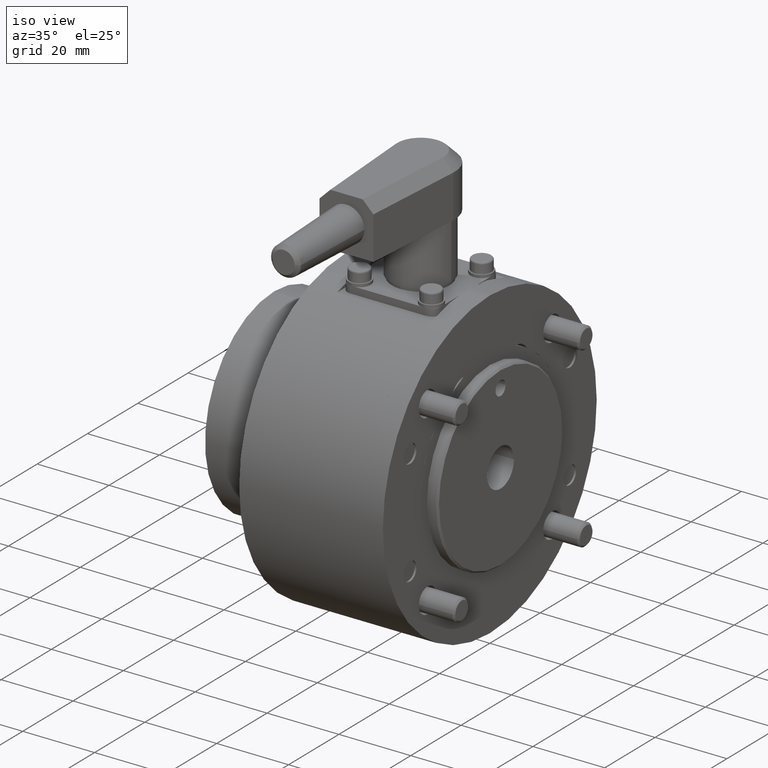
[diagram: clean part render]
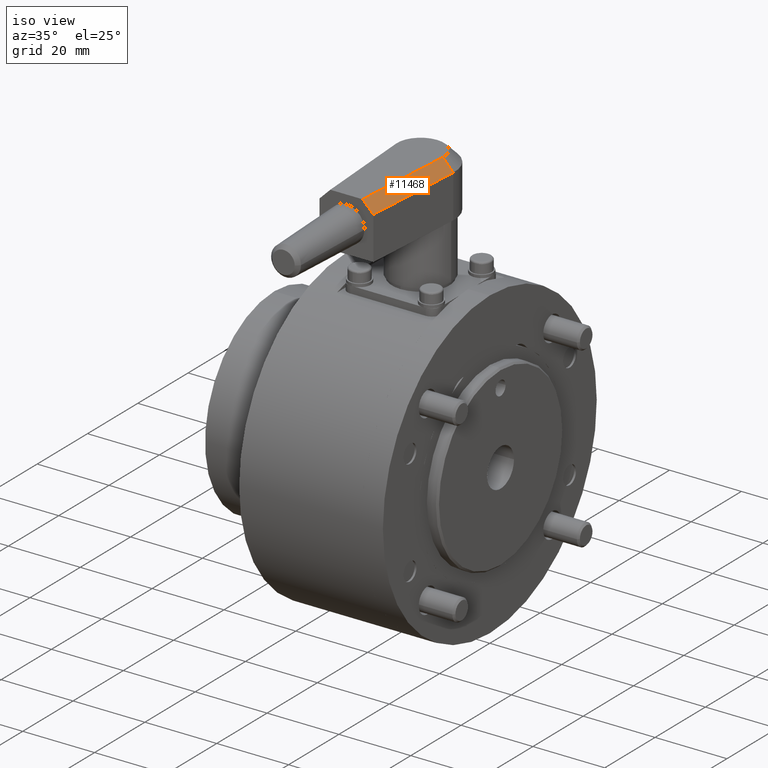
[diagram: same view with one face highlighted and labeled with its STEP entity id]
A machine part, iso view. The second image highlights one B-rep face of the part: STEP entity #11468.
In plain terms, the highlighted planar face has unit normal (0.7055, -0.0484, 0.7071).
Its self-contained STEP definition (entity closure, byte-faithful):
#11410=CARTESIAN_POINT('',(-62.827479109636137,-102.965427614952060,14.500000000000000));
#11411=VERTEX_POINT('',#11410);
#11412=CARTESIAN_POINT('',(-59.834503510992789,-103.170603310212230,11.500000000000000));
#11413=VERTEX_POINT('',#11412);
#11414=CARTESIAN_POINT('',(-62.827479109636137,-102.965427614952060,14.500000000000000));
#11415=DIRECTION('',(0.705451113908859,-0.048360375151043,-0.707106781186548));
#11416=VECTOR('',#11415,4.242640687119285);
#11417=LINE('',#11414,#11416);
#11418=EDGE_CURVE('',#11411,#11413,#11417,.T.);
#11438=CARTESIAN_POINT('',(-61.709604034720293,-108.590982712897330,13.0));
#11439=DIRECTION('',(0.705451113908860,-0.048360375151042,0.707106781186547));
#11440=DIRECTION('',(0.707935098842219,0.0,-0.706277492085978));
#11441=AXIS2_PLACEMENT_3D('',#11438,#11439,#11440);
#11442=PLANE('',#11441);
#11443=CARTESIAN_POINT('',(-64.819300460726268,-132.020880275221710,14.500000000000000));
#11444=VERTEX_POINT('',#11443);
#11445=CARTESIAN_POINT('',(-61.812259573363377,-132.020880275221710,11.500000000000000));
#11446=VERTEX_POINT('',#11445);
#11447=CARTESIAN_POINT('',(-64.819300460726268,-132.020880275221710,14.500000000000000));
#11448=DIRECTION('',(0.707935098842219,0.0,-0.706277492085978));
#11449=VECTOR('',#11448,4.247622264075774);
#11450=LINE('',#11447,#11449);
#11451=EDGE_CURVE('',#11444,#11446,#11450,.T.);
#11452=ORIENTED_EDGE('',*,*,#11451,.T.);
#11453=CARTESIAN_POINT('',(-61.812259573363377,-132.020880275221710,11.500000000000000));
#11454=DIRECTION('',(0.068391898420055,0.997658532881116,0.0));
#11455=VECTOR('',#11454,28.917987481842516);
#11456=LINE('',#11453,#11455);
#11457=EDGE_CURVE('',#11446,#11413,#11456,.T.);
#11458=ORIENTED_EDGE('',*,*,#11457,.T.);
#11459=ORIENTED_EDGE('',*,*,#11418,.F.);
#11460=CARTESIAN_POINT('',(-62.827479109636137,-102.965427614952060,14.500000000000000));
#11461=DIRECTION('',(-0.068391898420054,-0.997658532881116,0.0));
#11462=VECTOR('',#11461,29.123644716755994);
#11463=LINE('',#11460,#11462);
#11464=EDGE_CURVE('',#11411,#11444,#11463,.T.);
#11465=ORIENTED_EDGE('',*,*,#11464,.T.);
#11466=EDGE_LOOP('',(#11452,#11458,#11459,#11465));
#11467=FACE_OUTER_BOUND('',#11466,.T.);
#11468=ADVANCED_FACE('',(#11467),#11442,.T.);